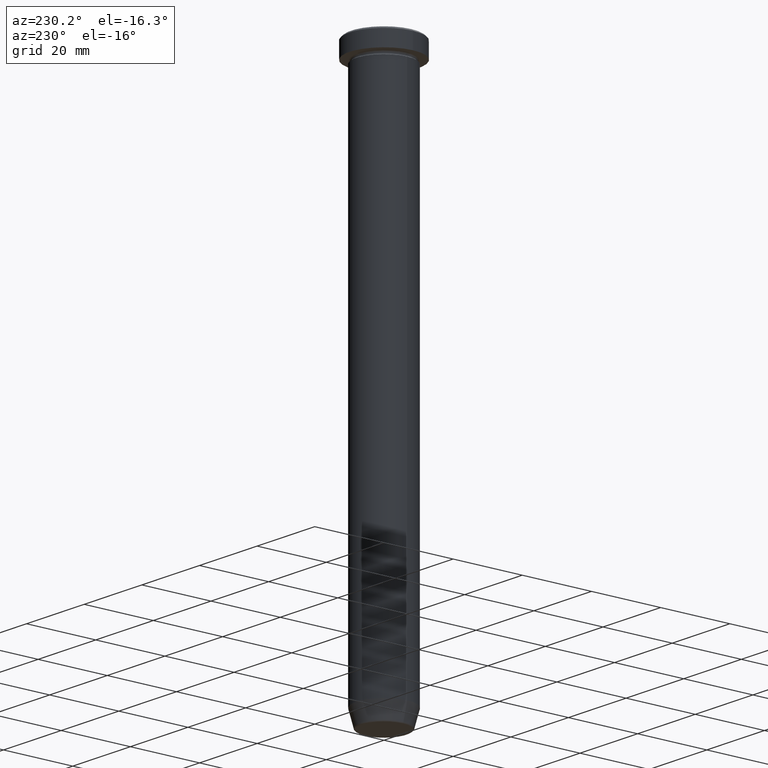
[diagram: clean part render]
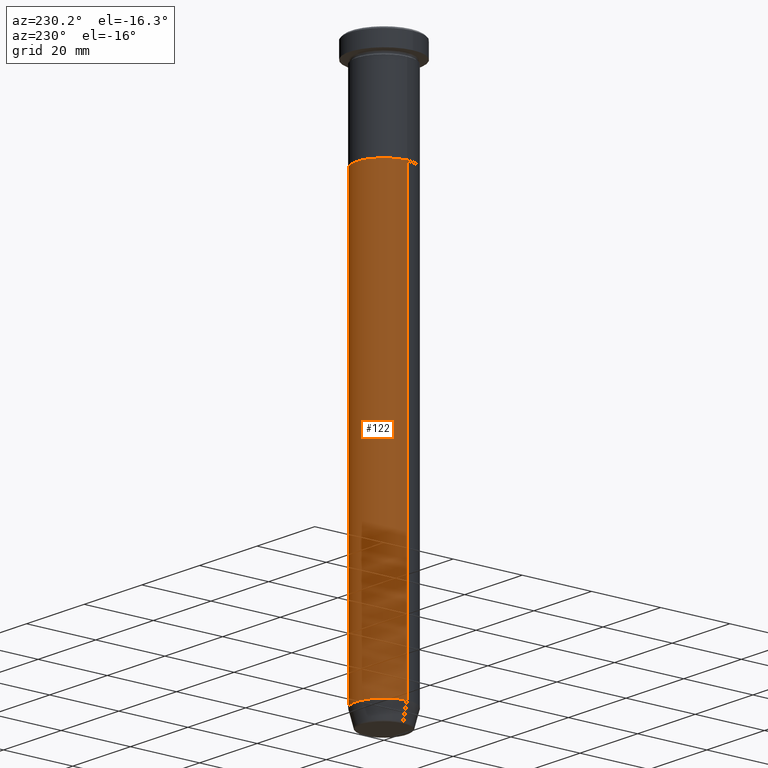
[diagram: same view with one face highlighted and labeled with its STEP entity id]
A machine part, auxiliary view. The second image highlights one B-rep face of the part: STEP entity #122.
In plain terms, the highlighted cylindrical surface (edge-blend (fillet) strip) has radius 8 mm, axis along (-0, -0, 1).
Its self-contained STEP definition (entity closure, byte-faithful):
#27 = CARTESIAN_POINT ( 'NONE',  ( 8.000000000000000000, 0.000000000000000000, 0.000000000000000000 ) ) ;
#61 = EDGE_CURVE ( 'NONE', #116, #458, #216, .T. ) ;
#73 = DIRECTION ( 'NONE',  ( -0.000000000000000000, -0.000000000000000000, 1.000000000000000000 ) ) ;
#83 = VECTOR ( 'NONE', #563, 1000.000000000000000 ) ;
#97 = ORIENTED_EDGE ( 'NONE', *, *, #191, .T. ) ;
#102 = CARTESIAN_POINT ( 'NONE',  ( 8.000000000000000000, 0.000000000000000000, -155.0000000000000000 ) ) ;
#104 = DIRECTION ( 'NONE',  ( -0.000000000000000000, -0.000000000000000000, 1.000000000000000000 ) ) ;
#116 = VERTEX_POINT ( 'NONE', #392 ) ;
#122 = ADVANCED_FACE ( 'NONE', ( #208 ), #450, .T. ) ;
#147 = CIRCLE ( 'NONE', #367, 8.000000000000000000 ) ;
#158 = EDGE_LOOP ( 'NONE', ( #97, #561, #476, #345 ) ) ;
#177 = DIRECTION ( 'NONE',  ( 1.000000000000000000, 0.000000000000000000, 0.000000000000000000 ) ) ;
#191 = EDGE_CURVE ( 'NONE', #317, #341, #147, .T. ) ;
#198 = EDGE_CURVE ( 'NONE', #341, #458, #204, .T. ) ;
#204 = LINE ( 'NONE', #533, #83 ) ;
#208 = FACE_OUTER_BOUND ( 'NONE', #158, .T. ) ;
#212 = CARTESIAN_POINT ( 'NONE',  ( 0.000000000000000000, 0.000000000000000000, 0.000000000000000000 ) ) ;
#216 = CIRCLE ( 'NONE', #481, 8.000000000000000000 ) ;
#226 = DIRECTION ( 'NONE',  ( -0.000000000000000000, -0.000000000000000000, 1.000000000000000000 ) ) ;
#230 = CARTESIAN_POINT ( 'NONE',  ( 0.000000000000000000, 0.000000000000000000, -30.00000000000000000 ) ) ;
#317 = VERTEX_POINT ( 'NONE', #102 ) ;
#341 = VERTEX_POINT ( 'NONE', #546 ) ;
#343 = EDGE_CURVE ( 'NONE', #317, #116, #549, .T. ) ;
#345 = ORIENTED_EDGE ( 'NONE', *, *, #343, .F. ) ;
#348 = DIRECTION ( 'NONE',  ( 1.000000000000000000, 0.000000000000000000, 0.000000000000000000 ) ) ;
#367 = AXIS2_PLACEMENT_3D ( 'NONE', #442, #104, #570 ) ;
#392 = CARTESIAN_POINT ( 'NONE',  ( 8.000000000000000000, 0.000000000000000000, -30.00000000000000000 ) ) ;
#411 = DIRECTION ( 'NONE',  ( -0.000000000000000000, -0.000000000000000000, 1.000000000000000000 ) ) ;
#442 = CARTESIAN_POINT ( 'NONE',  ( 0.000000000000000000, 0.000000000000000000, -155.0000000000000000 ) ) ;
#450 = CYLINDRICAL_SURFACE ( 'NONE', #499, 8.000000000000000000 ) ;
#458 = VERTEX_POINT ( 'NONE', #479 ) ;
#476 = ORIENTED_EDGE ( 'NONE', *, *, #61, .F. ) ;
#479 = CARTESIAN_POINT ( 'NONE',  ( -8.000000000000000000, 9.797174393178825657E-16, -30.00000000000000000 ) ) ;
#481 = AXIS2_PLACEMENT_3D ( 'NONE', #230, #411, #177 ) ;
#499 = AXIS2_PLACEMENT_3D ( 'NONE', #212, #73, #348 ) ;
#533 = CARTESIAN_POINT ( 'NONE',  ( -8.000000000000000000, 9.797174393178825657E-16, 0.000000000000000000 ) ) ;
#546 = CARTESIAN_POINT ( 'NONE',  ( -8.000000000000000000, 9.797174393178825657E-16, -155.0000000000000000 ) ) ;
#549 = LINE ( 'NONE', #27, #584 ) ;
#561 = ORIENTED_EDGE ( 'NONE', *, *, #198, .T. ) ;
#563 = DIRECTION ( 'NONE',  ( -0.000000000000000000, -0.000000000000000000, 1.000000000000000000 ) ) ;
#570 = DIRECTION ( 'NONE',  ( 1.000000000000000000, 0.000000000000000000, 0.000000000000000000 ) ) ;
#584 = VECTOR ( 'NONE', #226, 1000.000000000000000 ) ;